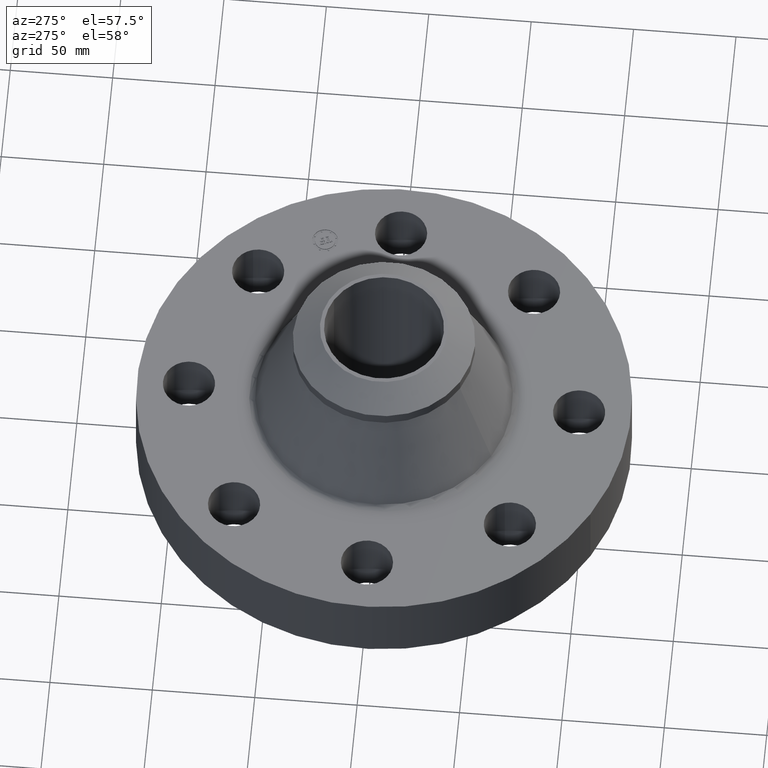
[diagram: clean part render]
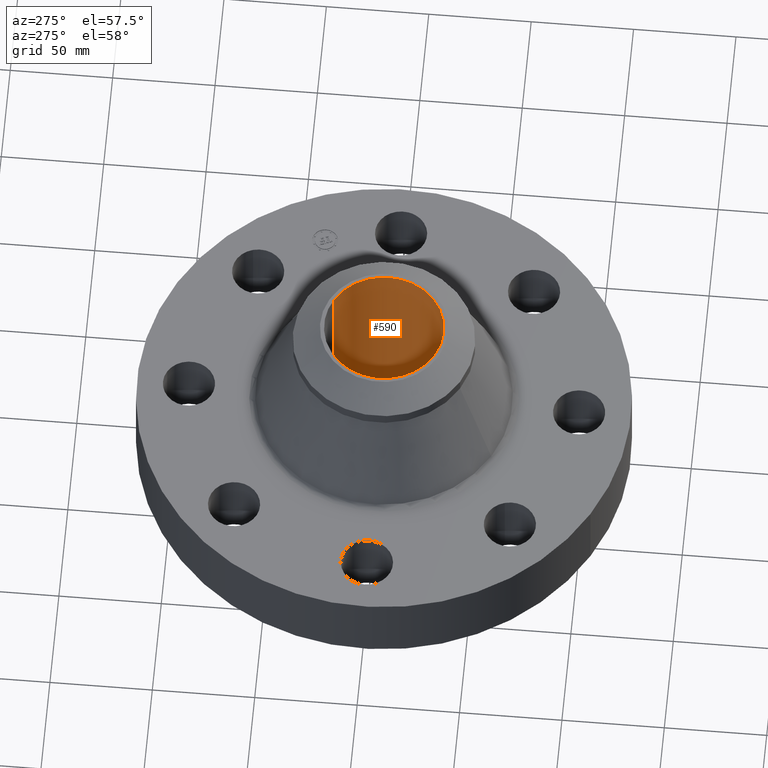
[diagram: same view with one face highlighted and labeled with its STEP entity id]
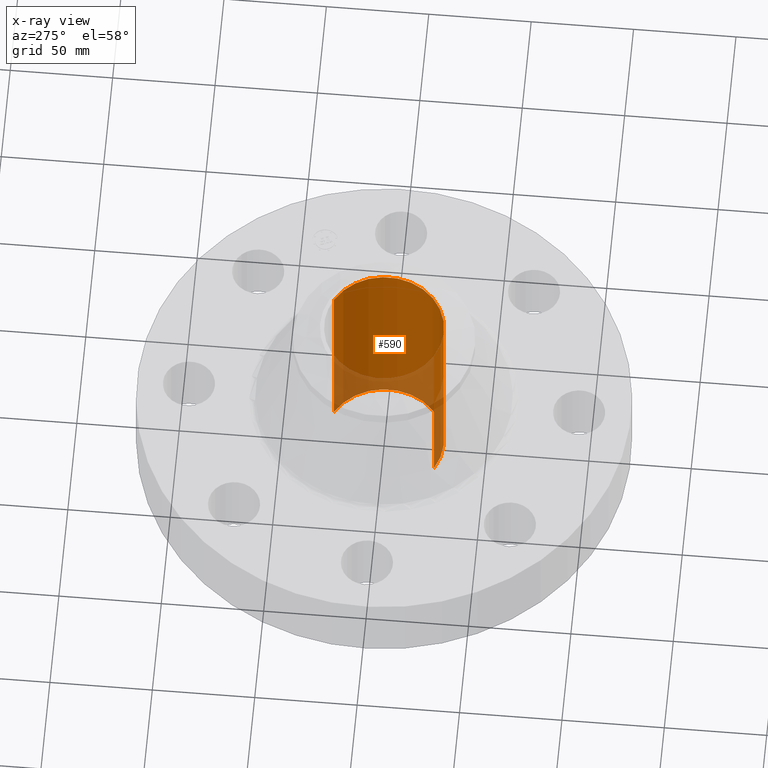
[diagram: x-ray of the same camera — body ghosted, the highlighted face saturated]
A machine part, auxiliary view. The second image highlights one B-rep face of the part: STEP entity #590.
The next image is the same camera in x-ray: the body ghosted, the highlighted face saturated — about 25% of this face is hidden behind the body in this view.
In plain terms, the highlighted cylindrical surface (partial cylindrical patch) has radius 29.21 mm, axis along (0, 0, -1).
Its self-contained STEP definition (entity closure, byte-faithful):
#165=AXIS2_PLACEMENT_3D('Circle Axis2P3D',#163,#164,$) ;
#563=AXIS2_PLACEMENT_3D('Cylinder Axis2P3D',#560,#561,#562) ;
#567=AXIS2_PLACEMENT_3D('Circle Axis2P3D',#565,#566,$) ;
#163=CARTESIAN_POINT('Axis2P3D Location',(1.281158906E-011,-5.53244239572E-012,0.)) ;
#167=CARTESIAN_POINT('Vertex',(0.551339369395,1.00921994617,-1.93337559435E-011)) ;
#169=CARTESIAN_POINT('Vertex',(-0.551339369414,-1.00921994614,0.)) ;
#560=CARTESIAN_POINT('Axis2P3D Location',(0.,0.,2.00000000001)) ;
#565=CARTESIAN_POINT('Axis2P3D Location',(0.,0.,4.00000000004)) ;
#569=CARTESIAN_POINT('Vertex',(0.551339369414,1.00921994614,4.00000000002)) ;
#571=CARTESIAN_POINT('Vertex',(-0.551339369414,-1.00921994614,4.00000000002)) ;
#574=CARTESIAN_POINT('Line Origine',(0.551339369395,1.00921994617,2.00000000001)) ;
#579=CARTESIAN_POINT('Line Origine',(-0.551339369395,-1.00921994617,2.00000000001)) ;
#164=DIRECTION('Axis2P3D Direction',(0.,0.,-0.0393700787402)) ;
#561=DIRECTION('Axis2P3D Direction',(0.,0.,-0.0393700787402)) ;
#562=DIRECTION('Axis2P3D XDirection',(0.0188750212049,0.0345504945626,0.)) ;
#566=DIRECTION('Axis2P3D Direction',(0.,0.,-0.0393700787402)) ;
#575=DIRECTION('Vector Direction',(0.,0.,-0.0393700787402)) ;
#580=DIRECTION('Vector Direction',(0.,0.,-0.0393700787402)) ;
#576=VECTOR('Line Direction',#575,0.0393700787402) ;
#581=VECTOR('Line Direction',#580,0.0393700787402) ;
#585=ORIENTED_EDGE('',*,*,#573,.F.) ;
#586=ORIENTED_EDGE('',*,*,#578,.T.) ;
#587=ORIENTED_EDGE('',*,*,#171,.T.) ;
#588=ORIENTED_EDGE('',*,*,#583,.F.) ;
#590=ADVANCED_FACE('PartBody',(#589),#564,.F.) ;
#166=CIRCLE('generated circle',#165,1.14999999998) ;
#568=CIRCLE('generated circle',#567,1.15) ;
#564=CYLINDRICAL_SURFACE('generated cylinder',#563,1.15) ;
#171=EDGE_CURVE('',#168,#170,#166,.T.) ;
#573=EDGE_CURVE('',#570,#572,#568,.T.) ;
#578=EDGE_CURVE('',#570,#168,#577,.T.) ;
#583=EDGE_CURVE('',#572,#170,#582,.T.) ;
#584=EDGE_LOOP('',(#585,#586,#587,#588)) ;
#589=FACE_OUTER_BOUND('',#584,.T.) ;
#577=LINE('Line',#574,#576) ;
#582=LINE('Line',#579,#581) ;
#168=VERTEX_POINT('',#167) ;
#170=VERTEX_POINT('',#169) ;
#570=VERTEX_POINT('',#569) ;
#572=VERTEX_POINT('',#571) ;